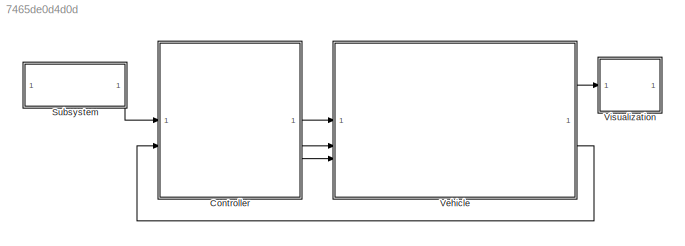
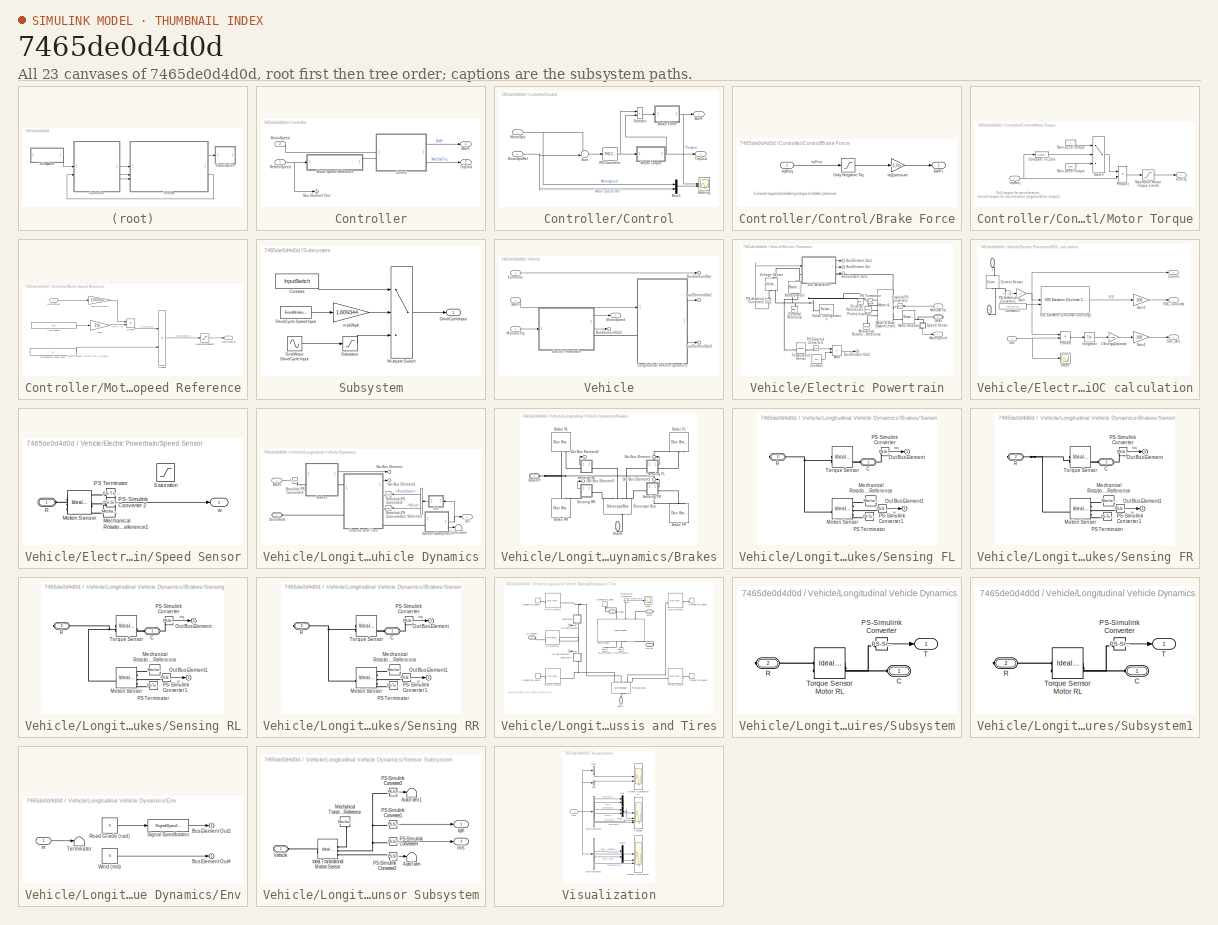
[diagram: thumbnail index - all 23 canvases of the model, root first then tree order]
MODEL slx_7465de0d4d0d
KIND model
CONFIG AbsTol = 1e-3
CONFIG EnableMultiTasking = off
CONFIG FixedStep = auto
CONFIG MaxStep = auto
CONFIG MinStep = auto
CONFIG PreLoadFcn = load fsDCycle.mat\nvehicleData
CONFIG RelTol = 1e-3
CONFIG SampleTimeConstraint = Unconstrained
CONFIG SolverName = VariableStepAuto
CONFIG StartTime = 0.0
CONFIG StopTime = simtime
BLOCK [SubSystem] Controller
BLOCK [Outport] Controller/BrkPr
BLOCK [Outport] Controller/Bus Element Out
  Port = 3
BLOCK [SubSystem] Controller/Control
  PortSchema = {"entries":[{"content":{"sides":[{"content":{"connectorIds":["Out1","Out2"]},"type":"ConnectorPlacement.EquallySpacedRectSide","uuid":"12b9f2c9-2b28-451b-ad36-7fe4150db485"},{"content":{"connectorIds":["In1","In2"],"side":"RIGHT"},"type":"ConnectorPlacement.EquallySpacedRectSide","uuid":"c0fdf9a4-483a-4ddc-b663-6299fcc79327"},{"content":{"connectorIds":[],"side":"TOP"},"type":"ConnectorPlacement.E...<+253ch>
BLOCK [SubSystem] Controller/Control/Brake Force
BLOCK [Saturate] Controller/Control/Brake Force/Only Negative Trq
  LowerLimit = -inf
  UpperLimit = 0
  ZeroCross = off
BLOCK [Outport] Controller/Control/Brake Force/brkPr
BLOCK [Gain] Controller/Control/Brake Force/trq2pressure
  Gain = -3.3e6
BLOCK [Inport] Controller/Control/Brake Force/trqReq
BLOCK [Scope] Controller/Control/Braking
  Floating = off
  NumInputPorts = 2
  ScopeSpecificationString = Simulink.scopes.TimeScopeBlockCfg('CurrentConfiguration', extmgr.ConfigurationSet(extmgr.Configuration('Core','General UI',true),extmgr.Configuration('Core','Source UI',true),extmgr.Configuration('Sources','WiredSimulink',true,'DataLoggingVariableName','ScopeData1'),extmgr.Configuration('Visuals','Time Domain',true,'SerializedDisplays',{struct('MinYLimReal','-1.00000','MaxYLimReal','1.00000','YLab...<+2047ch>
BLOCK [Outport] Controller/Control/BrkPr
BLOCK [SubSystem] Controller/Control/Motor Torque
BLOCK [Reference] Controller/Control/Motor Torque/Compare To Zero  REF=simulink/Logic and Bit
Operations/Compare
To Zero
  SourceBlock = simulink/Logic and Bit\nOperations/Compare\nTo Zero
  SourceType = Compare To Zero
BLOCK [Constant] Controller/Control/Motor Torque/Gain accel torque
BLOCK [Constant] Controller/Control/Motor Torque/Gain decel torque
  NameLocation = top
  Value = 0.95
BLOCK [Product] Controller/Control/Motor Torque/Product
BLOCK [Saturate] Controller/Control/Motor Torque/Saturation Motor Torque Limits
  LowerLimit = -MaxTrqOut
  UpperLimit = MaxTrqOut
BLOCK [Switch] Controller/Control/Motor Torque/Switch
  Criteria = u2 > Threshold
  InputSameDT = off
  SaturateOnIntegerOverflow = off
BLOCK [Outport] Controller/Control/Motor Torque/motTrq
BLOCK [Inport] Controller/Control/Motor Torque/trqReq
BLOCK [Inport] Controller/Control/MotorSpd
  Unit = rpm
BLOCK [Inport] Controller/Control/MotorSpdRef
  Port = 2
  Unit = rpm
BLOCK [Mux] Controller/Control/Mux1
  DisplayOption = bar
  Inputs = 2
BLOCK [Reference] Controller/Control/PID Controller  REF=slpidlib/PID Controller
  SourceBlock = slpidlib/PID Controller
  SourceType = PID 1dof
BLOCK [Sum] Controller/Control/Subtract
  IconShape = rectangular
  Inputs = +-
BLOCK [Sum] Controller/Control/Sum
  Inputs = -+|
BLOCK [Outport] Controller/Control/TrqCmd
  Port = 2
  Unit = N*m
  VectorParamsAs1DForOutWhenUnconnected = off
BLOCK [SubSystem] Controller/Motor Speed Reference
BLOCK [Constant] Controller/Motor Speed Reference/Differential Gear ratio
  Value = G
BLOCK [Product] Controller/Motor Speed Reference/Divide
  Inputs = */
BLOCK [Gain] Controller/Motor Speed Reference/Gain
  Gain = 2*pi
BLOCK [Saturate] Controller/Motor Speed Reference/MaxMotorspeedsat
  LowerLimit = -4500
  UpperLimit = 4500
BLOCK [Outport] Controller/Motor Speed Reference/MotorSpdRef
  NameLocation = right
  Unit = rpm
  VectorParamsAs1DForOutWhenUnconnected = off
BLOCK [Product] Controller/Motor Speed Reference/Product
BLOCK [Inport] Controller/Motor Speed Reference/RefVehSpd
  Unit = km/hr
BLOCK [Constant] Controller/Motor Speed Reference/Tyre radius
  Value = Rw
BLOCK [Gain] Controller/Motor Speed Reference/km//h to m//min
  Gain = 1000/60
BLOCK [Inport] Controller/MotorSpeed
  Port = 2
BLOCK [Inport] Controller/RefVehSpeed
BLOCK [Outport] Controller/TrqCmd
  Port = 2
BLOCK [SubSystem] Subsystem
BLOCK [Constant] Subsystem/Constant
  Value = InputSwitch
BLOCK [FromWorkspace] Subsystem/DriveCycle Speed Input
  VariableName = DrCycles.FTP
BLOCK [Outport] Subsystem/DriveCycleInput
BLOCK [MultiPortSwitch] Subsystem/Multiport Switch
  InputSameDT = off
  Inputs = 2
  SaturateOnIntegerOverflow = off
BLOCK [Saturate] Subsystem/Saturation
  LowerLimit = 0
  UpperLimit = 90
BLOCK [Sin] Subsystem/SineWave DriveCycle Input
  Amplitude = 150
  Bias = 50
  Frequency = 0.1
  SampleTime = 0
BLOCK [Gain] Subsystem/mph2kph
  Gain = 1.609344
BLOCK [SubSystem] Vehicle
BLOCK [Inport] Vehicle/BrkPr
BLOCK [Outport] Vehicle/BusElementOut
BLOCK [Outport] Vehicle/BusElementOut1
BLOCK [Outport] Vehicle/BusElementOut2
BLOCK [Outport] Vehicle/BusElementOut3
BLOCK [Inport] Vehicle/Controller
  Port = 3
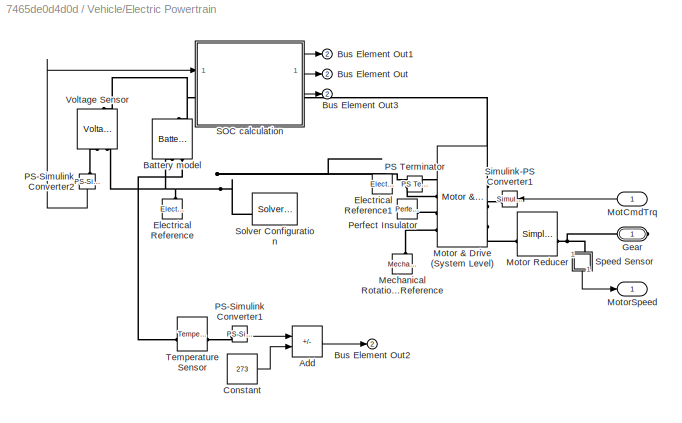
BLOCK [SubSystem] Vehicle/Electric Powertrain
BLOCK [Sum] Vehicle/Electric Powertrain/Add
  IconShape = rectangular
  Inputs = +-
BLOCK [Reference] Vehicle/Electric Powertrain/Battery model  REF=batteryecm_lib/Battery
  NameLocation = right
  SourceBlock = batteryecm_lib/Battery
  SourceType = Battery
BLOCK [Outport] Vehicle/Electric Powertrain/Bus Element Out
  Port = 2
BLOCK [Outport] Vehicle/Electric Powertrain/Bus Element Out1
  Port = 2
BLOCK [Outport] Vehicle/Electric Powertrain/Bus Element Out2
  Port = 2
BLOCK [Outport] Vehicle/Electric Powertrain/Bus Element Out3
  Port = 2
BLOCK [Constant] Vehicle/Electric Powertrain/Constant
  Value = 273
BLOCK [Reference] Vehicle/Electric Powertrain/Electrical Reference  REF=fl_lib/Electrical/Electrical Elements/Electrical Reference
  NameLocation = right
  SourceBlock = fl_lib/Electrical/Electrical Elements/Electrical Reference
  SourceType = Electrical Reference
BLOCK [Reference] Vehicle/Electric Powertrain/Electrical Reference1  REF=fl_lib/Electrical/Electrical Elements/Electrical Reference
  NameLocation = right
  SourceBlock = fl_lib/Electrical/Electrical Elements/Electrical Reference
  SourceType = Electrical Reference
BLOCK [PMIOPort] Vehicle/Electric Powertrain/Gear
  Side = Right
BLOCK [Reference] Vehicle/Electric Powertrain/Mechanical Rotational Reference  REF=fl_lib/Mechanical/Rotational Elements/Mechanical
Rotational Reference
  NameLocation = left
  SourceBlock = fl_lib/Mechanical/Rotational Elements/Mechanical\nRotational Reference
  SourceType = Mechanical\nRotational Reference
BLOCK [Inport] Vehicle/Electric Powertrain/MotCmdTrq
  NameLocation = top
BLOCK [Reference] Vehicle/Electric Powertrain/Motor & Drive (System Level)  REF=ee_lib/Electromechanical/Motor & Drive
(System Level)
  SourceBlock = ee_lib/Electromechanical/Motor & Drive\n(System Level)
  SourceType = Motor & Drive\n(System Level)
BLOCK [Reference] Vehicle/Electric Powertrain/Motor Reducer  REF=sdl_lib/Gears/Simple Gear
  SourceBlock = sdl_lib/Gears/Simple Gear
  SourceType = Simple Gear
BLOCK [Outport] Vehicle/Electric Powertrain/MotorSpeed
BLOCK [Reference] Vehicle/Electric Powertrain/PS Terminator  REF=fl_lib/Physical Signals/Sinks/PS Terminator
  NameLocation = top
  SourceBlock = fl_lib/Physical Signals/Sinks/PS Terminator
  SourceType = PS Terminator
BLOCK [Reference] Vehicle/Electric Powertrain/PS-Simulink Converter1  REF=nesl_utility/PS-Simulink
Converter
  SourceBlock = nesl_utility/PS-Simulink\nConverter
  SourceType = PS-Simulink\nConverter
BLOCK [Reference] Vehicle/Electric Powertrain/PS-Simulink Converter2  REF=nesl_utility/PS-Simulink
Converter
  NameLocation = left
  SourceBlock = nesl_utility/PS-Simulink\nConverter
  SourceType = PS-Simulink\nConverter
BLOCK [Reference] Vehicle/Electric Powertrain/Perfect Insulator  REF=fl_lib/Thermal/Thermal Elements/Perfect Insulator
  SourceBlock = fl_lib/Thermal/Thermal Elements/Perfect Insulator
  SourceType = Perfect Insulator
BLOCK [SubSystem] Vehicle/Electric Powertrain/SOC calculation
  NameLocation = top
BLOCK [PMIOPort] Vehicle/Electric Powertrain/SOC calculation/+
  NameLocation = left
  Side = Left
BLOCK [PMIOPort] Vehicle/Electric Powertrain/SOC calculation/-
  NameLocation = left
  Port = 2
  Side = Right
BLOCK [Gain] Vehicle/Electric Powertrain/SOC calculation/1//EnergyCapacity
  Gain = 1/(energyCapacity*Voc*3600)
BLOCK [Constant] Vehicle/Electric Powertrain/SOC calculation/Constant1
  Value = initialSOC
BLOCK [Outport] Vehicle/Electric Powertrain/SOC calculation/Current
  Port = 2
BLOCK [Reference] Vehicle/Electric Powertrain/SOC calculation/Current Sensor  REF=fl_lib/Electrical/Electrical Sensors/Current Sensor
  NameLocation = right
  SourceBlock = fl_lib/Electrical/Electrical Sensors/Current Sensor
  SourceType = Current Sensor
BLOCK [Gain] Vehicle/Electric Powertrain/SOC calculation/Gain
  Gain = -1
BLOCK [Gain] Vehicle/Electric Powertrain/SOC calculation/Gain1
  Gain = 100
BLOCK [Gain] Vehicle/Electric Powertrain/SOC calculation/Gain2
  Gain = 100
BLOCK [Integrator] Vehicle/Electric Powertrain/SOC calculation/Integrator
  InitialCondition = energyCapacity*Voc*3600*initialSOC
BLOCK [Reference] Vehicle/Electric Powertrain/SOC calculation/PS-Simulink Converter1  REF=nesl_utility/PS-Simulink
Converter
  SourceBlock = nesl_utility/PS-Simulink\nConverter
  SourceType = PS-Simulink\nConverter
BLOCK [Product] Vehicle/Electric Powertrain/SOC calculation/Product
BLOCK [Reference] Vehicle/Electric Powertrain/SOC calculation/SOC Estimator (Coulomb Counting)  REF=BatteryEstimators/SOC Estimator
(Coulomb Counting)
  LibrarySourceBlock = batt_sl_lib/Estimators/SOC Estimator\n(Coulomb Counting)
  SourceBlock = BatteryEstimators/SOC Estimator\n(Coulomb Counting)
  SourceType = SOC Estimator (Coulomb Counting)
BLOCK [Outport] Vehicle/Electric Powertrain/SOC calculation/SOC_Coulomb
BLOCK [Outport] Vehicle/Electric Powertrain/SOC calculation/SOC_calc
  Port = 3
BLOCK [Scope] Vehicle/Electric Powertrain/SOC calculation/Scope
  Floating = off
  NumInputPorts = 1
  ScopeSpecificationString = Simulink.scopes.TimeScopeBlockCfg('CurrentConfiguration', extmgr.ConfigurationSet(extmgr.Configuration('Core','General UI',true),extmgr.Configuration('Core','Source UI',true),extmgr.Configuration('Sources','WiredSimulink',true,'DataLoggingVariableName','ScopeData1'),extmgr.Configuration('Visuals','Time Domain',true,'SerializedDisplays',{struct('MinYLimReal','-85.96518','MaxYLimReal','773.69153','Y...<+1397ch>
BLOCK [Inport] Vehicle/Electric Powertrain/SOC calculation/Voc
BLOCK [Reference] Vehicle/Electric Powertrain/Simulink-PS Converter1  REF=nesl_utility/Simulink-PS
Converter
  NameLocation = top
  SourceBlock = nesl_utility/Simulink-PS\nConverter
  SourceType = Simulink-PS\nConverter
BLOCK [Reference] Vehicle/Electric Powertrain/Solver Configuration  REF=nesl_utility/Solver
Configuration
  SourceBlock = nesl_utility/Solver\nConfiguration
  SourceType = Solver\nConfiguration
BLOCK [SubSystem] Vehicle/Electric Powertrain/Speed Sensor
  NameLocation = left
BLOCK [Reference] Vehicle/Electric Powertrain/Speed Sensor/Mechanical Rotational Reference1  REF=fl_lib/Mechanical/Rotational Elements/Mechanical
Rotational Reference
  SourceBlock = fl_lib/Mechanical/Rotational Elements/Mechanical\nRotational Reference
  SourceType = Mechanical\nRotational Reference
BLOCK [Reference] Vehicle/Electric Powertrain/Speed Sensor/Motion Sensor  REF=fl_lib/Mechanical/Mechanical Sensors/Ideal Rotational
Motion Sensor
  SourceBlock = fl_lib/Mechanical/Mechanical Sensors/Ideal Rotational\nMotion Sensor
  SourceType = Ideal Rotational\nMotion Sensor
BLOCK [Reference] Vehicle/Electric Powertrain/Speed Sensor/PS Terminator  REF=fl_lib/Physical Signals/Sinks/PS Terminator
  NameLocation = top
  SourceBlock = fl_lib/Physical Signals/Sinks/PS Terminator
  SourceType = PS Terminator
BLOCK [Reference] Vehicle/Electric Powertrain/Speed Sensor/PS-Simulink Converter 2  REF=nesl_utility/PS-Simulink
Converter
  AttributesFormatString = %<Unit>
  SourceBlock = nesl_utility/PS-Simulink\nConverter
  SourceType = PS-Simulink\nConverter
BLOCK [PMIOPort] Vehicle/Electric Powertrain/Speed Sensor/R
  Side = Left
BLOCK [Saturate] Vehicle/Electric Powertrain/Speed Sensor/Saturation
  LowerLimit = -MaxMotorSpeed*0.10472
  UpperLimit = MaxMotorSpeed*0.10472
BLOCK [Outport] Vehicle/Electric Powertrain/Speed Sensor/w
BLOCK [Reference] Vehicle/Electric Powertrain/Temperature Sensor  REF=fl_lib/Thermal/Thermal Sensors/Temperature Sensor
  SourceBlock = fl_lib/Thermal/Thermal Sensors/Temperature Sensor
  SourceType = Temperature Sensor
BLOCK [Reference] Vehicle/Electric Powertrain/Voltage Sensor  REF=fl_lib/Electrical/Electrical Sensors/Voltage Sensor
  NameLocation = right
  SourceBlock = fl_lib/Electrical/Electrical Sensors/Voltage Sensor
  SourceType = Voltage Sensor
BLOCK [SubSystem] Vehicle/Longitudinal Vehicle Dynamics
BLOCK [SubSystem] Vehicle/Longitudinal Vehicle Dynamics/Brakes
BLOCK [Reference] Vehicle/Longitudinal Vehicle Dynamics/Brakes/Brake FL  REF=sdl_lib/Brakes & Detents/Rotational/Disc Brake
  NameLocation = left
  SourceBlock = sdl_lib/Brakes & Detents/Rotational/Disc Brake
  SourceType = Disc Brake
BLOCK [Reference] Vehicle/Longitudinal Vehicle Dynamics/Brakes/Brake FR  REF=sdl_lib/Brakes & Detents/Rotational/Disc Brake
  NameLocation = left
  SourceBlock = sdl_lib/Brakes & Detents/Rotational/Disc Brake
  SourceType = Disc Brake
BLOCK [Reference] Vehicle/Longitudinal Vehicle Dynamics/Brakes/Brake RL  REF=sdl_lib/Brakes & Detents/Rotational/Disc Brake
  NameLocation = right
  SourceBlock = sdl_lib/Brakes & Detents/Rotational/Disc Brake
  SourceType = Disc Brake
BLOCK [Reference] Vehicle/Longitudinal Vehicle Dynamics/Brakes/Brake RR  REF=sdl_lib/Brakes & Detents/Rotational/Disc Brake
  NameLocation = right
  SourceBlock = sdl_lib/Brakes & Detents/Rotational/Disc Brake
  SourceType = Disc Brake
BLOCK [PMIOPort] Vehicle/Longitudinal Vehicle Dynamics/Brakes/BrakePr
  Side = Left
BLOCK [Outport] Vehicle/Longitudinal Vehicle Dynamics/Brakes/Out Bus Element
BLOCK [Outport] Vehicle/Longitudinal Vehicle Dynamics/Brakes/Out Bus Element1
BLOCK [Outport] Vehicle/Longitudinal Vehicle Dynamics/Brakes/Out Bus Element2
BLOCK [Outport] Vehicle/Longitudinal Vehicle Dynamics/Brakes/Out Bus Element3
BLOCK [SubSystem] Vehicle/Longitudinal Vehicle Dynamics/Brakes/Sensing FL
BLOCK [PMIOPort] Vehicle/Longitudinal Vehicle Dynamics/Brakes/Sensing FL/C
  Side = Left
BLOCK [Reference] Vehicle/Longitudinal Vehicle Dynamics/Brakes/Sensing FL/Mechanical Rotational Reference  REF=fl_lib/Mechanical/Rotational Elements/Mechanical
Rotational Reference
  NameLocation = top
  SourceBlock = fl_lib/Mechanical/Rotational Elements/Mechanical\nRotational Reference
  SourceType = Mechanical\nRotational Reference
BLOCK [Reference] Vehicle/Longitudinal Vehicle Dynamics/Brakes/Sensing FL/Motion Sensor  REF=fl_lib/Mechanical/Mechanical Sensors/Ideal Rotational
Motion Sensor
  SourceBlock = fl_lib/Mechanical/Mechanical Sensors/Ideal Rotational\nMotion Sensor
  SourceType = Ideal Rotational\nMotion Sensor
BLOCK [Outport] Vehicle/Longitudinal Vehicle Dynamics/Brakes/Sensing FL/Out Bus Element
BLOCK [Outport] Vehicle/Longitudinal Vehicle Dynamics/Brakes/Sensing FL/Out Bus Element1
BLOCK [Reference] Vehicle/Longitudinal Vehicle Dynamics/Brakes/Sensing FL/PS Terminator  REF=fl_lib/Physical Signals/Sinks/PS Terminator
  SourceBlock = fl_lib/Physical Signals/Sinks/PS Terminator
  SourceType = PS Terminator
BLOCK [Reference] Vehicle/Longitudinal Vehicle Dynamics/Brakes/Sensing FL/PS-Simulink Converter  REF=nesl_utility/PS-Simulink
Converter
  SourceBlock = nesl_utility/PS-Simulink\nConverter
  SourceType = PS-Simulink\nConverter
BLOCK [Reference] Vehicle/Longitudinal Vehicle Dynamics/Brakes/Sensing FL/PS-Simulink Converter1  REF=nesl_utility/PS-Simulink
Converter
  SourceBlock = nesl_utility/PS-Simulink\nConverter
  SourceType = PS-Simulink\nConverter
BLOCK [PMIOPort] Vehicle/Longitudinal Vehicle Dynamics/Brakes/Sensing FL/R
  Port = 2
  Side = Right
BLOCK [Reference] Vehicle/Longitudinal Vehicle Dynamics/Brakes/Sensing FL/Torque Sensor  REF=fl_lib/Mechanical/Mechanical Sensors/Ideal Torque Sensor
  SourceBlock = fl_lib/Mechanical/Mechanical Sensors/Ideal Torque Sensor
  SourceType = Ideal Torque Sensor
BLOCK [SubSystem] Vehicle/Longitudinal Vehicle Dynamics/Brakes/Sensing FR
BLOCK [PMIOPort] Vehicle/Longitudinal Vehicle Dynamics/Brakes/Sensing FR/C
  Side = Left
BLOCK [Reference] Vehicle/Longitudinal Vehicle Dynamics/Brakes/Sensing FR/Mechanical Rotational Reference  REF=fl_lib/Mechanical/Rotational Elements/Mechanical
Rotational Reference
  NameLocation = top
  SourceBlock = fl_lib/Mechanical/Rotational Elements/Mechanical\nRotational Reference
  SourceType = Mechanical\nRotational Reference
BLOCK [Reference] Vehicle/Longitudinal Vehicle Dynamics/Brakes/Sensing FR/Motion Sensor  REF=fl_lib/Mechanical/Mechanical Sensors/Ideal Rotational
Motion Sensor
  SourceBlock = fl_lib/Mechanical/Mechanical Sensors/Ideal Rotational\nMotion Sensor
  SourceType = Ideal Rotational\nMotion Sensor
BLOCK [Outport] Vehicle/Longitudinal Vehicle Dynamics/Brakes/Sensing FR/Out Bus Element
BLOCK [Outport] Vehicle/Longitudinal Vehicle Dynamics/Brakes/Sensing FR/Out Bus Element1
BLOCK [Reference] Vehicle/Longitudinal Vehicle Dynamics/Brakes/Sensing FR/PS Terminator  REF=fl_lib/Physical Signals/Sinks/PS Terminator
  SourceBlock = fl_lib/Physical Signals/Sinks/PS Terminator
  SourceType = PS Terminator
BLOCK [Reference] Vehicle/Longitudinal Vehicle Dynamics/Brakes/Sensing FR/PS-Simulink Converter  REF=nesl_utility/PS-Simulink
Converter
  SourceBlock = nesl_utility/PS-Simulink\nConverter
  SourceType = PS-Simulink\nConverter
BLOCK [Reference] Vehicle/Longitudinal Vehicle Dynamics/Brakes/Sensing FR/PS-Simulink Converter1  REF=nesl_utility/PS-Simulink
Converter
  SourceBlock = nesl_utility/PS-Simulink\nConverter
  SourceType = PS-Simulink\nConverter
BLOCK [PMIOPort] Vehicle/Longitudinal Vehicle Dynamics/Brakes/Sensing FR/R
  Port = 2
  Side = Right
BLOCK [Reference] Vehicle/Longitudinal Vehicle Dynamics/Brakes/Sensing FR/Torque Sensor  REF=fl_lib/Mechanical/Mechanical Sensors/Ideal Torque Sensor
  SourceBlock = fl_lib/Mechanical/Mechanical Sensors/Ideal Torque Sensor
  SourceType = Ideal Torque Sensor
BLOCK [SubSystem] Vehicle/Longitudinal Vehicle Dynamics/Brakes/Sensing RL
BLOCK [PMIOPort] Vehicle/Longitudinal Vehicle Dynamics/Brakes/Sensing RL/C
  Side = Left
BLOCK [Reference] Vehicle/Longitudinal Vehicle Dynamics/Brakes/Sensing RL/Mechanical Rotational Reference  REF=fl_lib/Mechanical/Rotational Elements/Mechanical
Rotational Reference
  NameLocation = top
  SourceBlock = fl_lib/Mechanical/Rotational Elements/Mechanical\nRotational Reference
  SourceType = Mechanical\nRotational Reference
BLOCK [Reference] Vehicle/Longitudinal Vehicle Dynamics/Brakes/Sensing RL/Motion Sensor  REF=fl_lib/Mechanical/Mechanical Sensors/Ideal Rotational
Motion Sensor
  SourceBlock = fl_lib/Mechanical/Mechanical Sensors/Ideal Rotational\nMotion Sensor
  SourceType = Ideal Rotational\nMotion Sensor
BLOCK [Outport] Vehicle/Longitudinal Vehicle Dynamics/Brakes/Sensing RL/Out Bus Element
BLOCK [Outport] Vehicle/Longitudinal Vehicle Dynamics/Brakes/Sensing RL/Out Bus Element1
BLOCK [Reference] Vehicle/Longitudinal Vehicle Dynamics/Brakes/Sensing RL/PS Terminator  REF=fl_lib/Physical Signals/Sinks/PS Terminator
  SourceBlock = fl_lib/Physical Signals/Sinks/PS Terminator
  SourceType = PS Terminator
BLOCK [Reference] Vehicle/Longitudinal Vehicle Dynamics/Brakes/Sensing RL/PS-Simulink Converter  REF=nesl_utility/PS-Simulink
Converter
  SourceBlock = nesl_utility/PS-Simulink\nConverter
  SourceType = PS-Simulink\nConverter
BLOCK [Reference] Vehicle/Longitudinal Vehicle Dynamics/Brakes/Sensing RL/PS-Simulink Converter1  REF=nesl_utility/PS-Simulink
Converter
  SourceBlock = nesl_utility/PS-Simulink\nConverter
  SourceType = PS-Simulink\nConverter
BLOCK [PMIOPort] Vehicle/Longitudinal Vehicle Dynamics/Brakes/Sensing RL/R
  Port = 2
  Side = Right
BLOCK [Reference] Vehicle/Longitudinal Vehicle Dynamics/Brakes/Sensing RL/Torque Sensor  REF=fl_lib/Mechanical/Mechanical Sensors/Ideal Torque Sensor
  SourceBlock = fl_lib/Mechanical/Mechanical Sensors/Ideal Torque Sensor
  SourceType = Ideal Torque Sensor
BLOCK [SubSystem] Vehicle/Longitudinal Vehicle Dynamics/Brakes/Sensing RR
BLOCK [PMIOPort] Vehicle/Longitudinal Vehicle Dynamics/Brakes/Sensing RR/C
  Side = Left
BLOCK [Reference] Vehicle/Longitudinal Vehicle Dynamics/Brakes/Sensing RR/Mechanical Rotational Reference  REF=fl_lib/Mechanical/Rotational Elements/Mechanical
Rotational Reference
  NameLocation = top
  SourceBlock = fl_lib/Mechanical/Rotational Elements/Mechanical\nRotational Reference
  SourceType = Mechanical\nRotational Reference
BLOCK [Reference] Vehicle/Longitudinal Vehicle Dynamics/Brakes/Sensing RR/Motion Sensor  REF=fl_lib/Mechanical/Mechanical Sensors/Ideal Rotational
Motion Sensor
  SourceBlock = fl_lib/Mechanical/Mechanical Sensors/Ideal Rotational\nMotion Sensor
  SourceType = Ideal Rotational\nMotion Sensor
BLOCK [Outport] Vehicle/Longitudinal Vehicle Dynamics/Brakes/Sensing RR/Out Bus Element
BLOCK [Outport] Vehicle/Longitudinal Vehicle Dynamics/Brakes/Sensing RR/Out Bus Element1
BLOCK [Reference] Vehicle/Longitudinal Vehicle Dynamics/Brakes/Sensing RR/PS Terminator  REF=fl_lib/Physical Signals/Sinks/PS Terminator
  SourceBlock = fl_lib/Physical Signals/Sinks/PS Terminator
  SourceType = PS Terminator
BLOCK [Reference] Vehicle/Longitudinal Vehicle Dynamics/Brakes/Sensing RR/PS-Simulink Converter  REF=nesl_utility/PS-Simulink
Converter
  SourceBlock = nesl_utility/PS-Simulink\nConverter
  SourceType = PS-Simulink\nConverter
BLOCK [Reference] Vehicle/Longitudinal Vehicle Dynamics/Brakes/Sensing RR/PS-Simulink Converter1  REF=nesl_utility/PS-Simulink
Converter
  SourceBlock = nesl_utility/PS-Simulink\nConverter
  SourceType = PS-Simulink\nConverter
BLOCK [PMIOPort] Vehicle/Longitudinal Vehicle Dynamics/Brakes/Sensing RR/R
  Port = 2
  Side = Right
BLOCK [Reference] Vehicle/Longitudinal Vehicle Dynamics/Brakes/Sensing RR/Torque Sensor  REF=fl_lib/Mechanical/Mechanical Sensors/Ideal Torque Sensor
  SourceBlock = fl_lib/Mechanical/Mechanical Sensors/Ideal Torque Sensor
  SourceType = Ideal Torque Sensor
BLOCK [PMIOPort] Vehicle/Longitudinal Vehicle Dynamics/Brakes/Shafts
  NameLocation = left
  Port = 2
  Side = Right
BLOCK [SimscapeBus] Vehicle/Longitudinal Vehicle Dynamics/Brakes/Simscape Bus
  HierarchyStrings = RR;RL;FL;FR
  NameLocation = left
BLOCK [Inport] Vehicle/Longitudinal Vehicle Dynamics/BrkPr
BLOCK [BusSelector] Vehicle/Longitudinal Vehicle Dynamics/Bus Selector2
  OutputSignals = RoadGrade,Wind
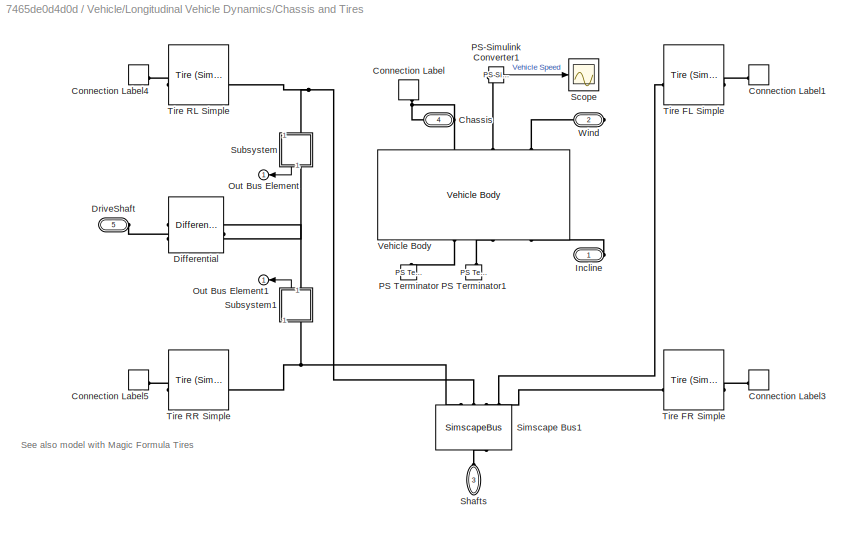
BLOCK [SubSystem] Vehicle/Longitudinal Vehicle Dynamics/Chassis and Tires
BLOCK [PMIOPort] Vehicle/Longitudinal Vehicle Dynamics/Chassis and Tires/Chassis
  Port = 4
  Side = Right
BLOCK [ConnectionLabel] Vehicle/Longitudinal Vehicle Dynamics/Chassis and Tires/Connection Label
  Label = VehicleHub
  NameLocation = right
BLOCK [ConnectionLabel] Vehicle/Longitudinal Vehicle Dynamics/Chassis and Tires/Connection Label1
  Label = VehicleHub
BLOCK [ConnectionLabel] Vehicle/Longitudinal Vehicle Dynamics/Chassis and Tires/Connection Label3
  Label = VehicleHub
BLOCK [ConnectionLabel] Vehicle/Longitudinal Vehicle Dynamics/Chassis and Tires/Connection Label4
  Label = VehicleHub
  NameLocation = top
BLOCK [ConnectionLabel] Vehicle/Longitudinal Vehicle Dynamics/Chassis and Tires/Connection Label5
  Label = VehicleHub
  NameLocation = top
BLOCK [Reference] Vehicle/Longitudinal Vehicle Dynamics/Chassis and Tires/Differential  REF=sdl_lib/Gears/Differential
  SourceBlock = sdl_lib/Gears/Differential
  SourceType = Differential
BLOCK [PMIOPort] Vehicle/Longitudinal Vehicle Dynamics/Chassis and Tires/DriveShaft
  Port = 5
  Side = Left
BLOCK [PMIOPort] Vehicle/Longitudinal Vehicle Dynamics/Chassis and Tires/Incline
  Side = Right
BLOCK [Outport] Vehicle/Longitudinal Vehicle Dynamics/Chassis and Tires/Out Bus Element
  NameLocation = top
BLOCK [Outport] Vehicle/Longitudinal Vehicle Dynamics/Chassis and Tires/Out Bus Element1
  NameLocation = top
BLOCK [Reference] Vehicle/Longitudinal Vehicle Dynamics/Chassis and Tires/PS Terminator  REF=fl_lib/Physical Signals/Sinks/PS Terminator
  NameLocation = left
  SourceBlock = fl_lib/Physical Signals/Sinks/PS Terminator
  SourceType = PS Terminator
BLOCK [Reference] Vehicle/Longitudinal Vehicle Dynamics/Chassis and Tires/PS Terminator1  REF=fl_lib/Physical Signals/Sinks/PS Terminator
  NameLocation = left
  SourceBlock = fl_lib/Physical Signals/Sinks/PS Terminator
  SourceType = PS Terminator
BLOCK [Reference] Vehicle/Longitudinal Vehicle Dynamics/Chassis and Tires/PS-Simulink Converter1  REF=nesl_utility/PS-Simulink
Converter
  SourceBlock = nesl_utility/PS-Simulink\nConverter
  SourceType = PS-Simulink\nConverter
BLOCK [Scope] Vehicle/Longitudinal Vehicle Dynamics/Chassis and Tires/Scope
  Floating = off
  NumInputPorts = 1
  ScopeSpecificationString = Simulink.scopes.TimeScopeBlockCfg('CurrentConfiguration', extmgr.ConfigurationSet(extmgr.Configuration('Core','General UI',true),extmgr.Configuration('Core','Source UI',true),extmgr.Configuration('Sources','WiredSimulink',true,'DataLoggingLimitDataPoints',true,'DataLoggingSaveFormat','Array','DataLoggingDecimation','1','DataLoggingDecimateData',true,'DataLoggingVariableName','ScopeData1'),extmgr.C...<+1679ch>
BLOCK [PMIOPort] Vehicle/Longitudinal Vehicle Dynamics/Chassis and Tires/Shafts
  NameLocation = right
  Port = 3
  Side = Left
BLOCK [SimscapeBus] Vehicle/Longitudinal Vehicle Dynamics/Chassis and Tires/Simscape Bus1
  HierarchyStrings = RR;RL;FL;FR
  NameLocation = left
BLOCK [SubSystem] Vehicle/Longitudinal Vehicle Dynamics/Chassis and Tires/Subsystem
  NameLocation = top
BLOCK [PMIOPort] Vehicle/Longitudinal Vehicle Dynamics/Chassis and Tires/Subsystem/C
  Side = Left
BLOCK [Reference] Vehicle/Longitudinal Vehicle Dynamics/Chassis and Tires/Subsystem/PS-Simulink Converter  REF=nesl_utility/PS-Simulink
Converter
  SourceBlock = nesl_utility/PS-Simulink\nConverter
  SourceType = PS-Simulink\nConverter
BLOCK [PMIOPort] Vehicle/Longitudinal Vehicle Dynamics/Chassis and Tires/Subsystem/R
  Port = 2
  Side = Right
BLOCK [Outport] Vehicle/Longitudinal Vehicle Dynamics/Chassis and Tires/Subsystem/T
BLOCK [Reference] Vehicle/Longitudinal Vehicle Dynamics/Chassis and Tires/Subsystem/Torque Sensor Motor RL  REF=fl_lib/Mechanical/Mechanical Sensors/Ideal Torque Sensor
  SourceBlock = fl_lib/Mechanical/Mechanical Sensors/Ideal Torque Sensor
  SourceType = Ideal Torque Sensor
BLOCK [SubSystem] Vehicle/Longitudinal Vehicle Dynamics/Chassis and Tires/Subsystem1
BLOCK [PMIOPort] Vehicle/Longitudinal Vehicle Dynamics/Chassis and Tires/Subsystem1/C
  Side = Left
BLOCK [Reference] Vehicle/Longitudinal Vehicle Dynamics/Chassis and Tires/Subsystem1/PS-Simulink Converter  REF=nesl_utility/PS-Simulink
Converter
  SourceBlock = nesl_utility/PS-Simulink\nConverter
  SourceType = PS-Simulink\nConverter
BLOCK [PMIOPort] Vehicle/Longitudinal Vehicle Dynamics/Chassis and Tires/Subsystem1/R
  Port = 2
  Side = Right
BLOCK [Outport] Vehicle/Longitudinal Vehicle Dynamics/Chassis and Tires/Subsystem1/T
BLOCK [Reference] Vehicle/Longitudinal Vehicle Dynamics/Chassis and Tires/Subsystem1/Torque Sensor Motor RL  REF=fl_lib/Mechanical/Mechanical Sensors/Ideal Torque Sensor
  SourceBlock = fl_lib/Mechanical/Mechanical Sensors/Ideal Torque Sensor
  SourceType = Ideal Torque Sensor
BLOCK [Reference] Vehicle/Longitudinal Vehicle Dynamics/Chassis and Tires/Tire FL Simple  REF=sdl_lib/Tires & Vehicles/Tire (Simple)
  NameLocation = top
  SourceBlock = sdl_lib/Tires & Vehicles/Tire (Simple)
  SourceType = Tire (Simple)
BLOCK [Reference] Vehicle/Longitudinal Vehicle Dynamics/Chassis and Tires/Tire FR Simple  REF=sdl_lib/Tires & Vehicles/Tire (Simple)
  NameLocation = top
  SourceBlock = sdl_lib/Tires & Vehicles/Tire (Simple)
  SourceType = Tire (Simple)
BLOCK [Reference] Vehicle/Longitudinal Vehicle Dynamics/Chassis and Tires/Tire RL Simple  REF=sdl_lib/Tires & Vehicles/Tire (Simple)
  NameLocation = top
  SourceBlock = sdl_lib/Tires & Vehicles/Tire (Simple)
  SourceType = Tire (Simple)
BLOCK [Reference] Vehicle/Longitudinal Vehicle Dynamics/Chassis and Tires/Tire RR Simple  REF=sdl_lib/Tires & Vehicles/Tire (Simple)
  NameLocation = top
  SourceBlock = sdl_lib/Tires & Vehicles/Tire (Simple)
  SourceType = Tire (Simple)
BLOCK [Reference] Vehicle/Longitudinal Vehicle Dynamics/Chassis and Tires/Vehicle Body  REF=sdl_lib/Tires & Vehicles/Vehicle Body
  NameLocation = right
  SourceBlock = sdl_lib/Tires & Vehicles/Vehicle Body
  SourceType = Vehicle Body
BLOCK [PMIOPort] Vehicle/Longitudinal Vehicle Dynamics/Chassis and Tires/Wind
  Port = 2
  Side = Right
BLOCK [PMIOPort] Vehicle/Longitudinal Vehicle Dynamics/DriveShaft
  Side = Left
BLOCK [SubSystem] Vehicle/Longitudinal Vehicle Dynamics/Env
  NameLocation = top
BLOCK [Outport] Vehicle/Longitudinal Vehicle Dynamics/Env/Bus Element Out2
  AttributesFormatString = %<Unit>
BLOCK [Outport] Vehicle/Longitudinal Vehicle Dynamics/Env/Bus Element Out4
  AttributesFormatString = %<Unit>
BLOCK [Constant] Vehicle/Longitudinal Vehicle Dynamics/Env/Road Grade (rad)
  Value = 0
BLOCK [SignalSpecification] Vehicle/Longitudinal Vehicle Dynamics/Env/Signal Specification
  Unit = rad
BLOCK [Terminator] Vehicle/Longitudinal Vehicle Dynamics/Env/Terminator
BLOCK [Constant] Vehicle/Longitudinal Vehicle Dynamics/Env/Wind (m//s)
  Value = 0
BLOCK [Inport] Vehicle/Longitudinal Vehicle Dynamics/Env/m
BLOCK [Outport] Vehicle/Longitudinal Vehicle Dynamics/Out Bus Element
  Port = 2
BLOCK [Outport] Vehicle/Longitudinal Vehicle Dynamics/Out Bus Element1
  Port = 2
BLOCK [SubSystem] Vehicle/Longitudinal Vehicle Dynamics/Sensor Subsystem
BLOCK [Terminator] Vehicle/Longitudinal Vehicle Dynamics/Sensor Subsystem/AutoTerm
BLOCK [Terminator] Vehicle/Longitudinal Vehicle Dynamics/Sensor Subsystem/AutoTerm1
BLOCK [Reference] Vehicle/Longitudinal Vehicle Dynamics/Sensor Subsystem/Ideal Translational Motion Sensor  REF=fl_lib/Mechanical/Mechanical Sensors/Ideal Translational
Motion Sensor
  SourceBlock = fl_lib/Mechanical/Mechanical Sensors/Ideal Translational\nMotion Sensor
  SourceType = Ideal Translational\nMotion Sensor
BLOCK [Reference] Vehicle/Longitudinal Vehicle Dynamics/Sensor Subsystem/Mechanical Translational Reference  REF=fl_lib/Mechanical/Translational
Elements/Mechanical
Translational
Reference
  NameLocation = left
  SourceBlock = fl_lib/Mechanical/Translational\nElements/Mechanical\nTranslational\nReference
  SourceType = Mechanical\nTranslational\nReference
BLOCK [Reference] Vehicle/Longitudinal Vehicle Dynamics/Sensor Subsystem/PS-Simulink Converter1  REF=nesl_utility/PS-Simulink
Converter
  SourceBlock = nesl_utility/PS-Simulink\nConverter
  SourceType = PS-Simulink\nConverter
BLOCK [Reference] Vehicle/Longitudinal Vehicle Dynamics/Sensor Subsystem/PS-Simulink Converter2  REF=nesl_utility/PS-Simulink
Converter
  SourceBlock = nesl_utility/PS-Simulink\nConverter
  SourceType = PS-Simulink\nConverter
BLOCK [Reference] Vehicle/Longitudinal Vehicle Dynamics/Sensor Subsystem/PS-Simulink Converter3  REF=nesl_utility/PS-Simulink
Converter
  SourceBlock = nesl_utility/PS-Simulink\nConverter
  SourceType = PS-Simulink\nConverter
BLOCK [Reference] Vehicle/Longitudinal Vehicle Dynamics/Sensor Subsystem/PS-Simulink Converter4  REF=nesl_utility/PS-Simulink
Converter
  SourceBlock = nesl_utility/PS-Simulink\nConverter
  SourceType = PS-Simulink\nConverter
BLOCK [PMIOPort] Vehicle/Longitudinal Vehicle Dynamics/Sensor Subsystem/Vehicle
  Side = Left
BLOCK [Outport] Vehicle/Longitudinal Vehicle Dynamics/Sensor Subsystem/kph
  VectorParamsAs1DForOutWhenUnconnected = off
BLOCK [Outport] Vehicle/Longitudinal Vehicle Dynamics/Sensor Subsystem/m//s
  Port = 2
  VectorParamsAs1DForOutWhenUnconnected = off
BLOCK [Reference] Vehicle/Longitudinal Vehicle Dynamics/Simulink-PS Converter2  REF=nesl_utility/Simulink-PS
Converter
  AttributesFormatString = %<Unit>
  SourceBlock = nesl_utility/Simulink-PS\nConverter
  SourceType = Simulink-PS\nConverter
BLOCK [Reference] Vehicle/Longitudinal Vehicle Dynamics/Simulink-PS Converter3  REF=nesl_utility/Simulink-PS
Converter
  AttributesFormatString = %<Unit>
  SourceBlock = nesl_utility/Simulink-PS\nConverter
  SourceType = Simulink-PS\nConverter
BLOCK [Reference] Vehicle/Longitudinal Vehicle Dynamics/Simulink-PS Converter4  REF=nesl_utility/Simulink-PS
Converter
  AttributesFormatString = %<Unit>
  SourceBlock = nesl_utility/Simulink-PS\nConverter
  SourceType = Simulink-PS\nConverter
BLOCK [Terminator] Vehicle/Longitudinal Vehicle Dynamics/Terminator
BLOCK [Outport] Vehicle/Longitudinal Vehicle Dynamics/Vel
BLOCK [Inport] Vehicle/MotCmdTrq
  Port = 2
BLOCK [Outport] Vehicle/MotorSpeed
  Port = 2
  VectorParamsAs1DForOutWhenUnconnected = off
BLOCK [SubSystem] Visualization
BLOCK [Scope] Visualization/Battery Information
  Floating = off
  NumInputPorts = 3
  ScopeSpecificationString = Simulink.scopes.TimeScopeBlockCfg('CurrentConfiguration', extmgr.ConfigurationSet(extmgr.Configuration('Core','General UI',true),extmgr.Configuration('Core','Source UI',true),extmgr.Configuration('Sources','WiredSimulink',true,'DataLoggingVariableName','ScopeData1'),extmgr.Configuration('Visuals','Time Domain',true,'SerializedDisplays',{struct('MinYLimReal','-302.40309','MaxYLimReal','111.46422','...<+3026ch>
BLOCK [BusSelector] Visualization/Bus Selector1
  OutputSignals = Vehicle.Brakes.RL.brkTrqRL,Vehicle.Chassis.tRL,Vehicle.Brakes.RR.brqTrqRR,Vehicle.Chassis.tRR,Vehicle.Brakes.FL.brkTrqFL,Vehicle.Brakes.FR.brkTrqFR
BLOCK [BusSelector] Visualization/Bus Selector2
  OutputSignals = Battery.Current,Battery.SOC_coulomb,Battery.SOC_calc,Battery.Temperature
BLOCK [BusSelector] Visualization/Cha
  OutputAsBus = on
  OutputSignals = VehSpeed,RefVehSpeed
BLOCK [Inport] Visualization/Info
BLOCK [Mux] Visualization/Mux
  DisplayOption = bar
  Inputs = 2
BLOCK [Mux] Visualization/Mux1
  DisplayOption = bar
  Inputs = 2
BLOCK [Mux] Visualization/Mux2
  DisplayOption = bar
  Inputs = 2
BLOCK [Scope] Visualization/Torques
  Floating = off
  NumInputPorts = 4
  ScopeSpecificationString = Simulink.scopes.TimeScopeBlockCfg('CurrentConfiguration', extmgr.ConfigurationSet(extmgr.Configuration('Core','General UI',true),extmgr.Configuration('Core','Source UI',true),extmgr.Configuration('Sources','WiredSimulink',true,'DataLoggingVariableName','ScopeData2'),extmgr.Configuration('Visuals','Time Domain',true,'SerializedDisplays',{struct('MinYLimReal','-3384.37376','MaxYLimReal','3384.37118'...<+3543ch>
BLOCK [Scope] Visualization/Velocity Comparison
  Floating = off
  NumInputPorts = 2
  ScopeSpecificationString = Simulink.scopes.TimeScopeBlockCfg('CurrentConfiguration', extmgr.ConfigurationSet(extmgr.Configuration('Core','General UI',true),extmgr.Configuration('Core','Source UI',true),extmgr.Configuration('Sources','WiredSimulink',true,'DataLoggingVariableName','ScopeData1'),extmgr.Configuration('Visuals','Time Domain',true,'SerializedDisplays',{struct('MinYLimReal','-11.40623','MaxYLimReal','102.65603','Y...<+2273ch>
BLOCK [BusSelector] Visualization/Whl
  OutputAsBus = on
  OutputSignals = Vehicle.Brakes.FL.wFL,Vehicle.Brakes.RR.wRR,Vehicle.Brakes.RL.wRL,Vehicle.Brakes.FR.wFR
ANNOTATION Controller/Control/Brake Force: Convert requested braking torque to brake pressure
ANNOTATION Controller/Control/Motor Torque: Full torque for acceleration, limited torque for deceleration (regenerative torque)
ANNOTATION Controller/Motor Speed Reference: Motor Reducer Output Shaft to Wheels
ANNOTATION Vehicle/Longitudinal Vehicle Dynamics/Chassis and Tires: See also model with Magic Formula Tires
LINE Controller/Control/Brake Force/Only Negative Trq:1 -> Controller/Control/Brake Force/trq2pressure:1
LINE Controller/Control/Brake Force/trq2pressure:1 -> Controller/Control/Brake Force/brkPr:1
LINE Controller/Control/Brake Force/trqReq:1 -> Controller/Control/Brake Force/Only Negative Trq:1
NET Controller/Control/Brake Force:1 -> Controller/Control/Braking:1, Controller/Control/BrkPr:1
LINE Controller/Control/Motor Torque/Compare To Zero:1 -> Controller/Control/Motor Torque/Switch:2
LINE Controller/Control/Motor Torque/Gain accel torque:1 -> Controller/Control/Motor Torque/Switch:1
LINE Controller/Control/Motor Torque/Gain decel torque:1 -> Controller/Control/Motor Torque/Switch:3
LINE Controller/Control/Motor Torque/Product:1 -> Controller/Control/Motor Torque/Saturation Motor Torque Limits:1
LINE Controller/Control/Motor Torque/Saturation Motor Torque Limits:1 -> Controller/Control/Motor Torque/motTrq:1
LINE Controller/Control/Motor Torque/Switch:1 -> Controller/Control/Motor Torque/Product:1
NET Controller/Control/Motor Torque/trqReq:1 -> Controller/Control/Motor Torque/Compare To Zero:1, Controller/Control/Motor Torque/Product:2
NET Controller/Control/Motor Torque:1 -> Controller/Control/Subtract:2, Controller/Control/TrqCmd:1
NET Controller/Control/MotorSpd:1 -> Controller/Control/Mux1:1, Controller/Control/Sum:1
NET Controller/Control/MotorSpdRef:1 -> Controller/Control/Mux1:2, Controller/Control/Sum:2
LINE Controller/Control/Mux1:1 -> Controller/Control/Braking:2
NET Controller/Control/PID Controller:1 -> Controller/Control/Motor Torque:1, Controller/Control/Subtract:1
LINE Controller/Control/Subtract:1 -> Controller/Control/Brake Force:1
LINE Controller/Control/Sum:1 -> Controller/Control/PID Controller:1
LINE Controller/Control:1 -> Controller/BrkPr:1
LINE Controller/Control:2 -> Controller/TrqCmd:1
LINE Controller/Motor Speed Reference/Differential Gear ratio:1 -> Controller/Motor Speed Reference/Product:2
LINE Controller/Motor Speed Reference/Divide:1 -> Controller/Motor Speed Reference/Product:1
LINE Controller/Motor Speed Reference/Gain:1 -> Controller/Motor Speed Reference/Divide:2
LINE Controller/Motor Speed Reference/MaxMotorspeedsat:1 -> Controller/Motor Speed Reference/MotorSpdRef:1
LINE Controller/Motor Speed Reference/Product:1 -> Controller/Motor Speed Reference/MaxMotorspeedsat:1
LINE Controller/Motor Speed Reference/RefVehSpd:1 -> Controller/Motor Speed Reference/km//h to m//min:1
LINE Controller/Motor Speed Reference/Tyre radius:1 -> Controller/Motor Speed Reference/Gain:1
LINE Controller/Motor Speed Reference/km//h to m//min:1 -> Controller/Motor Speed Reference/Divide:1
LINE Controller/Motor Speed Reference:1 -> Controller/Control:2
LINE Controller/MotorSpeed:1 -> Controller/Control:1
NET Controller/RefVehSpeed:1 -> Controller/Bus Element Out:1, Controller/Motor Speed Reference:1
LINE Controller:1 -> Vehicle:1
LINE Controller:2 -> Vehicle:2
LINE Controller:3 -> Vehicle:3
LINE Subsystem/Constant:1 -> Subsystem/Multiport Switch:1
LINE Subsystem/DriveCycle Speed Input:1 -> Subsystem/mph2kph:1
LINE Subsystem/Multiport Switch:1 -> Subsystem/DriveCycleInput:1
LINE Subsystem/Saturation:1 -> Subsystem/Multiport Switch:3
LINE Subsystem/SineWave DriveCycle Input:1 -> Subsystem/Saturation:1
LINE Subsystem/mph2kph:1 -> Subsystem/Multiport Switch:2
LINE Subsystem:1 -> Controller:1
LINE Vehicle/BrkPr:1 -> Vehicle/Longitudinal Vehicle Dynamics:1
LINE Vehicle/Controller:1 -> Vehicle/BusElementOut:1
LINE Vehicle/Electric Powertrain/Add:1 -> Vehicle/Electric Powertrain/Bus Element Out2:1
LINE Vehicle/Electric Powertrain/Constant:1 -> Vehicle/Electric Powertrain/Add:2
LINE Vehicle/Electric Powertrain/MotCmdTrq:1 -> Vehicle/Electric Powertrain/Simulink-PS Converter1:1
LINE Vehicle/Electric Powertrain/PS-Simulink Converter1:1 -> Vehicle/Electric Powertrain/Add:1
LINE Vehicle/Electric Powertrain/PS-Simulink Converter2:1 -> Vehicle/Electric Powertrain/SOC calculation:1
LINE Vehicle/Electric Powertrain/SOC calculation/1//EnergyCapacity:1 -> Vehicle/Electric Powertrain/SOC calculation/Gain2:1
LINE Vehicle/Electric Powertrain/SOC calculation/Constant1:1 -> Vehicle/Electric Powertrain/SOC calculation/SOC Estimator (Coulomb Counting):2
LINE Vehicle/Electric Powertrain/SOC calculation/Gain1:1 -> Vehicle/Electric Powertrain/SOC calculation/SOC_Coulomb:1
LINE Vehicle/Electric Powertrain/SOC calculation/Gain2:1 -> Vehicle/Electric Powertrain/SOC calculation/SOC_calc:1
NET Vehicle/Electric Powertrain/SOC calculation/Gain:1 -> Vehicle/Electric Powertrain/SOC calculation/Current:1, Vehicle/Electric Powertrain/SOC calculation/Product:1, Vehicle/Electric Powertrain/SOC calculation/SOC Estimator (Coulomb Counting):1
LINE Vehicle/Electric Powertrain/SOC calculation/Integrator:1 -> Vehicle/Electric Powertrain/SOC calculation/1//EnergyCapacity:1
LINE Vehicle/Electric Powertrain/SOC calculation/PS-Simulink Converter1:1 -> Vehicle/Electric Powertrain/SOC calculation/Gain:1
LINE Vehicle/Electric Powertrain/SOC calculation/Product:1 -> Vehicle/Electric Powertrain/SOC calculation/Integrator:1
LINE Vehicle/Electric Powertrain/SOC calculation/SOC Estimator (Coulomb Counting):1 -> Vehicle/Electric Powertrain/SOC calculation/Gain1:1
NET Vehicle/Electric Powertrain/SOC calculation/Voc:1 -> Vehicle/Electric Powertrain/SOC calculation/Product:2, Vehicle/Electric Powertrain/SOC calculation/Scope:1
LINE Vehicle/Electric Powertrain/SOC calculation:1 -> Vehicle/Electric Powertrain/Bus Element Out1:1
LINE Vehicle/Electric Powertrain/SOC calculation:2 -> Vehicle/Electric Powertrain/Bus Element Out:1
LINE Vehicle/Electric Powertrain/SOC calculation:3 -> Vehicle/Electric Powertrain/Bus Element Out3:1
LINE Vehicle/Electric Powertrain/Speed Sensor/PS-Simulink Converter 2:1 -> Vehicle/Electric Powertrain/Speed Sensor/w:1
LINE Vehicle/Electric Powertrain/Speed Sensor:1 -> Vehicle/Electric Powertrain/MotorSpeed:1
LINE Vehicle/Electric Powertrain:1 -> Vehicle/MotorSpeed:1
LINE Vehicle/Electric Powertrain:2 -> Vehicle/BusElementOut2:1
LINE Vehicle/Longitudinal Vehicle Dynamics/Brakes/Sensing FL/PS-Simulink Converter1:1 -> Vehicle/Longitudinal Vehicle Dynamics/Brakes/Sensing FL/Out Bus Element1:1
LINE Vehicle/Longitudinal Vehicle Dynamics/Brakes/Sensing FL/PS-Simulink Converter:1 -> Vehicle/Longitudinal Vehicle Dynamics/Brakes/Sensing FL/Out Bus Element:1
LINE Vehicle/Longitudinal Vehicle Dynamics/Brakes/Sensing FL:1 -> Vehicle/Longitudinal Vehicle Dynamics/Brakes/Out Bus Element:1
LINE Vehicle/Longitudinal Vehicle Dynamics/Brakes/Sensing FR/PS-Simulink Converter1:1 -> Vehicle/Longitudinal Vehicle Dynamics/Brakes/Sensing FR/Out Bus Element1:1
LINE Vehicle/Longitudinal Vehicle Dynamics/Brakes/Sensing FR/PS-Simulink Converter:1 -> Vehicle/Longitudinal Vehicle Dynamics/Brakes/Sensing FR/Out Bus Element:1
LINE Vehicle/Longitudinal Vehicle Dynamics/Brakes/Sensing FR:1 -> Vehicle/Longitudinal Vehicle Dynamics/Brakes/Out Bus Element1:1
LINE Vehicle/Longitudinal Vehicle Dynamics/Brakes/Sensing RL/PS-Simulink Converter1:1 -> Vehicle/Longitudinal Vehicle Dynamics/Brakes/Sensing RL/Out Bus Element1:1
LINE Vehicle/Longitudinal Vehicle Dynamics/Brakes/Sensing RL/PS-Simulink Converter:1 -> Vehicle/Longitudinal Vehicle Dynamics/Brakes/Sensing RL/Out Bus Element:1
LINE Vehicle/Longitudinal Vehicle Dynamics/Brakes/Sensing RL:1 -> Vehicle/Longitudinal Vehicle Dynamics/Brakes/Out Bus Element2:1
LINE Vehicle/Longitudinal Vehicle Dynamics/Brakes/Sensing RR/PS-Simulink Converter1:1 -> Vehicle/Longitudinal Vehicle Dynamics/Brakes/Sensing RR/Out Bus Element1:1
LINE Vehicle/Longitudinal Vehicle Dynamics/Brakes/Sensing RR/PS-Simulink Converter:1 -> Vehicle/Longitudinal Vehicle Dynamics/Brakes/Sensing RR/Out Bus Element:1
LINE Vehicle/Longitudinal Vehicle Dynamics/Brakes/Sensing RR:1 -> Vehicle/Longitudinal Vehicle Dynamics/Brakes/Out Bus Element3:1
LINE Vehicle/Longitudinal Vehicle Dynamics/Brakes:1 -> Vehicle/Longitudinal Vehicle Dynamics/Out Bus Element:1
LINE Vehicle/Longitudinal Vehicle Dynamics/BrkPr:1 -> Vehicle/Longitudinal Vehicle Dynamics/Simulink-PS Converter3:1
LINE Vehicle/Longitudinal Vehicle Dynamics/Bus Selector2:1 -> Vehicle/Longitudinal Vehicle Dynamics/Simulink-PS Converter2:1
LINE Vehicle/Longitudinal Vehicle Dynamics/Bus Selector2:2 -> Vehicle/Longitudinal Vehicle Dynamics/Simulink-PS Converter4:1
LINE Vehicle/Longitudinal Vehicle Dynamics/Chassis and Tires/PS-Simulink Converter1:1 -> Vehicle/Longitudinal Vehicle Dynamics/Chassis and Tires/Scope:1
LINE Vehicle/Longitudinal Vehicle Dynamics/Chassis and Tires/Subsystem/PS-Simulink Converter:1 -> Vehicle/Longitudinal Vehicle Dynamics/Chassis and Tires/Subsystem/T:1
LINE Vehicle/Longitudinal Vehicle Dynamics/Chassis and Tires/Subsystem1/PS-Simulink Converter:1 -> Vehicle/Longitudinal Vehicle Dynamics/Chassis and Tires/Subsystem1/T:1
LINE Vehicle/Longitudinal Vehicle Dynamics/Chassis and Tires/Subsystem1:1 -> Vehicle/Longitudinal Vehicle Dynamics/Chassis and Tires/Out Bus Element1:1
LINE Vehicle/Longitudinal Vehicle Dynamics/Chassis and Tires/Subsystem:1 -> Vehicle/Longitudinal Vehicle Dynamics/Chassis and Tires/Out Bus Element:1
LINE Vehicle/Longitudinal Vehicle Dynamics/Chassis and Tires:1 -> Vehicle/Longitudinal Vehicle Dynamics/Out Bus Element1:1
LINE Vehicle/Longitudinal Vehicle Dynamics/Env/Road Grade (rad):1 -> Vehicle/Longitudinal Vehicle Dynamics/Env/Signal Specification:1
LINE Vehicle/Longitudinal Vehicle Dynamics/Env/Signal Specification:1 -> Vehicle/Longitudinal Vehicle Dynamics/Env/Bus Element Out2:1
LINE Vehicle/Longitudinal Vehicle Dynamics/Env/Wind (m//s):1 -> Vehicle/Longitudinal Vehicle Dynamics/Env/Bus Element Out4:1
LINE Vehicle/Longitudinal Vehicle Dynamics/Env/m:1 -> Vehicle/Longitudinal Vehicle Dynamics/Env/Terminator:1
LINE Vehicle/Longitudinal Vehicle Dynamics/Env:1 -> Vehicle/Longitudinal Vehicle Dynamics/Bus Selector2:1
LINE Vehicle/Longitudinal Vehicle Dynamics/Sensor Subsystem/PS-Simulink Converter1:1 -> Vehicle/Longitudinal Vehicle Dynamics/Sensor Subsystem/kph:1
LINE Vehicle/Longitudinal Vehicle Dynamics/Sensor Subsystem/PS-Simulink Converter2:1 -> Vehicle/Longitudinal Vehicle Dynamics/Sensor Subsystem/AutoTerm:1
LINE Vehicle/Longitudinal Vehicle Dynamics/Sensor Subsystem/PS-Simulink Converter3:1 -> Vehicle/Longitudinal Vehicle Dynamics/Sensor Subsystem/AutoTerm1:1
LINE Vehicle/Longitudinal Vehicle Dynamics/Sensor Subsystem/PS-Simulink Converter4:1 -> Vehicle/Longitudinal Vehicle Dynamics/Sensor Subsystem/m//s:1
NET Vehicle/Longitudinal Vehicle Dynamics/Sensor Subsystem:1 -> Vehicle/Longitudinal Vehicle Dynamics/Env:1, Vehicle/Longitudinal Vehicle Dynamics/Vel:1
LINE Vehicle/Longitudinal Vehicle Dynamics/Sensor Subsystem:2 -> Vehicle/Longitudinal Vehicle Dynamics/Terminator:1
LINE Vehicle/Longitudinal Vehicle Dynamics:1 -> Vehicle/BusElementOut1:1
LINE Vehicle/Longitudinal Vehicle Dynamics:2 -> Vehicle/BusElementOut3:1
LINE Vehicle/MotCmdTrq:1 -> Vehicle/Electric Powertrain:1
LINE Vehicle:1 -> Visualization:1
LINE Vehicle:2 -> Controller:2
LINE Visualization/Bus Selector1:1 -> Visualization/Mux:1
LINE Visualization/Bus Selector1:2 -> Visualization/Mux:2
LINE Visualization/Bus Selector1:3 -> Visualization/Mux1:1
LINE Visualization/Bus Selector1:4 -> Visualization/Mux1:2
LINE Visualization/Bus Selector1:5 -> Visualization/Torques:3
LINE Visualization/Bus Selector1:6 -> Visualization/Torques:4
LINE Visualization/Bus Selector2:1 -> Visualization/Battery Information:1
LINE Visualization/Bus Selector2:2 -> Visualization/Mux2:1
LINE Visualization/Bus Selector2:3 -> Visualization/Mux2:2
LINE Visualization/Bus Selector2:4 -> Visualization/Battery Information:3
LINE Visualization/Cha:1 -> Visualization/Velocity Comparison:1
NET Visualization/Info:1 -> Visualization/Bus Selector1:1, Visualization/Bus Selector2:1, Visualization/Cha:1, Visualization/Whl:1
LINE Visualization/Mux1:1 -> Visualization/Torques:2
LINE Visualization/Mux2:1 -> Visualization/Battery Information:2
LINE Visualization/Mux:1 -> Visualization/Torques:1
LINE Visualization/Whl:1 -> Visualization/Velocity Comparison:2
PNET net1: Vehicle/Electric Powertrain/Battery model:LConn1 -- Vehicle/Electric Powertrain/SOC calculation:LConn1 -- Vehicle/Electric Powertrain/Voltage Sensor:LConn1
PNET net2: Vehicle/Electric Powertrain/Battery model:RConn1 -- Vehicle/Electric Powertrain/Electrical Reference1:LConn1 -- Vehicle/Electric Powertrain/Electrical Reference:LConn1 -- Vehicle/Electric Powertrain/Motor & Drive (System Level):RConn1 -- Vehicle/Electric Powertrain/Solver Configuration:RConn1 -- Vehicle/Electric Powertrain/Voltage Sensor:RConn2
PLINE Vehicle/Electric Powertrain/Battery model:RConn2 -- Vehicle/Electric Powertrain/Temperature Sensor:LConn1
PNET net3: Vehicle/Electric Powertrain/Gear:RConn1 -- Vehicle/Electric Powertrain/Motor Reducer:RConn1 -- Vehicle/Electric Powertrain/Speed Sensor:LConn1
PLINE Vehicle/Electric Powertrain/Mechanical Rotational Reference:LConn1 -- Vehicle/Electric Powertrain/Motor & Drive (System Level):RConn4
PLINE Vehicle/Electric Powertrain/Motor & Drive (System Level):LConn1 -- Vehicle/Electric Powertrain/SOC calculation:RConn1
PLINE Vehicle/Electric Powertrain/Motor & Drive (System Level):LConn2 -- Vehicle/Electric Powertrain/Simulink-PS Converter1:RConn1
PLINE Vehicle/Electric Powertrain/Motor & Drive (System Level):LConn3 -- Vehicle/Electric Powertrain/Motor Reducer:LConn1
PLINE Vehicle/Electric Powertrain/Motor & Drive (System Level):RConn2 -- Vehicle/Electric Powertrain/PS Terminator:LConn1
PLINE Vehicle/Electric Powertrain/Motor & Drive (System Level):RConn3 -- Vehicle/Electric Powertrain/Perfect Insulator:LConn1
PLINE Vehicle/Electric Powertrain/PS-Simulink Converter1:LConn1 -- Vehicle/Electric Powertrain/Temperature Sensor:RConn1
PLINE Vehicle/Electric Powertrain/PS-Simulink Converter2:LConn1 -- Vehicle/Electric Powertrain/Voltage Sensor:RConn1
PLINE Vehicle/Electric Powertrain/SOC calculation/+:RConn1 -- Vehicle/Electric Powertrain/SOC calculation/Current Sensor:LConn1
PLINE Vehicle/Electric Powertrain/SOC calculation/-:RConn1 -- Vehicle/Electric Powertrain/SOC calculation/Current Sensor:RConn2
PLINE Vehicle/Electric Powertrain/SOC calculation/Current Sensor:RConn1 -- Vehicle/Electric Powertrain/SOC calculation/PS-Simulink Converter1:LConn1
PLINE Vehicle/Electric Powertrain/Speed Sensor/Mechanical Rotational Reference1:LConn1 -- Vehicle/Electric Powertrain/Speed Sensor/Motion Sensor:RConn1
PLINE Vehicle/Electric Powertrain/Speed Sensor/Motion Sensor:LConn1 -- Vehicle/Electric Powertrain/Speed Sensor/R:RConn1
PLINE Vehicle/Electric Powertrain/Speed Sensor/Motion Sensor:RConn2 -- Vehicle/Electric Powertrain/Speed Sensor/PS-Simulink Converter 2:LConn1
PLINE Vehicle/Electric Powertrain/Speed Sensor/Motion Sensor:RConn3 -- Vehicle/Electric Powertrain/Speed Sensor/PS Terminator:LConn1
PLINE Vehicle/Electric Powertrain:RConn1 -- Vehicle/Longitudinal Vehicle Dynamics:LConn1
PNET net4: Vehicle/Longitudinal Vehicle Dynamics/Brakes/Brake FL:LConn1 -- Vehicle/Longitudinal Vehicle Dynamics/Brakes/Brake FR:LConn1 -- Vehicle/Longitudinal Vehicle Dynamics/Brakes/Brake RL:LConn1 -- Vehicle/Longitudinal Vehicle Dynamics/Brakes/Brake RR:LConn1 -- Vehicle/Longitudinal Vehicle Dynamics/Brakes/BrakePr:RConn1
PLINE Vehicle/Longitudinal Vehicle Dynamics/Brakes/Brake FL:LConn2 -- Vehicle/Longitudinal Vehicle Dynamics/Brakes/Sensing FL:RConn1
PLINE Vehicle/Longitudinal Vehicle Dynamics/Brakes/Brake FR:LConn2 -- Vehicle/Longitudinal Vehicle Dynamics/Brakes/Sensing FR:RConn1
PLINE Vehicle/Longitudinal Vehicle Dynamics/Brakes/Brake RL:LConn2 -- Vehicle/Longitudinal Vehicle Dynamics/Brakes/Sensing RL:RConn1
PLINE Vehicle/Longitudinal Vehicle Dynamics/Brakes/Brake RR:LConn2 -- Vehicle/Longitudinal Vehicle Dynamics/Brakes/Sensing RR:RConn1
PLINE Vehicle/Longitudinal Vehicle Dynamics/Brakes/Sensing FL/C:RConn1 -- Vehicle/Longitudinal Vehicle Dynamics/Brakes/Sensing FL/Torque Sensor:RConn1
PLINE Vehicle/Longitudinal Vehicle Dynamics/Brakes/Sensing FL/Mechanical Rotational Reference:LConn1 -- Vehicle/Longitudinal Vehicle Dynamics/Brakes/Sensing FL/Motion Sensor:RConn1
PNET net5: Vehicle/Longitudinal Vehicle Dynamics/Brakes/Sensing FL/Motion Sensor:LConn1 -- Vehicle/Longitudinal Vehicle Dynamics/Brakes/Sensing FL/R:RConn1 -- Vehicle/Longitudinal Vehicle Dynamics/Brakes/Sensing FL/Torque Sensor:LConn1
PLINE Vehicle/Longitudinal Vehicle Dynamics/Brakes/Sensing FL/Motion Sensor:RConn2 -- Vehicle/Longitudinal Vehicle Dynamics/Brakes/Sensing FL/PS-Simulink Converter1:LConn1
PLINE Vehicle/Longitudinal Vehicle Dynamics/Brakes/Sensing FL/Motion Sensor:RConn3 -- Vehicle/Longitudinal Vehicle Dynamics/Brakes/Sensing FL/PS Terminator:LConn1
PLINE Vehicle/Longitudinal Vehicle Dynamics/Brakes/Sensing FL/PS-Simulink Converter:LConn1 -- Vehicle/Longitudinal Vehicle Dynamics/Brakes/Sensing FL/Torque Sensor:RConn2
PLINE Vehicle/Longitudinal Vehicle Dynamics/Brakes/Sensing FL:LConn1 -- Vehicle/Longitudinal Vehicle Dynamics/Brakes/Simscape Bus:LConn3
PLINE Vehicle/Longitudinal Vehicle Dynamics/Brakes/Sensing FR/C:RConn1 -- Vehicle/Longitudinal Vehicle Dynamics/Brakes/Sensing FR/Torque Sensor:RConn1
PLINE Vehicle/Longitudinal Vehicle Dynamics/Brakes/Sensing FR/Mechanical Rotational Reference:LConn1 -- Vehicle/Longitudinal Vehicle Dynamics/Brakes/Sensing FR/Motion Sensor:RConn1
PNET net6: Vehicle/Longitudinal Vehicle Dynamics/Brakes/Sensing FR/Motion Sensor:LConn1 -- Vehicle/Longitudinal Vehicle Dynamics/Brakes/Sensing FR/R:RConn1 -- Vehicle/Longitudinal Vehicle Dynamics/Brakes/Sensing FR/Torque Sensor:LConn1
PLINE Vehicle/Longitudinal Vehicle Dynamics/Brakes/Sensing FR/Motion Sensor:RConn2 -- Vehicle/Longitudinal Vehicle Dynamics/Brakes/Sensing FR/PS-Simulink Converter1:LConn1
PLINE Vehicle/Longitudinal Vehicle Dynamics/Brakes/Sensing FR/Motion Sensor:RConn3 -- Vehicle/Longitudinal Vehicle Dynamics/Brakes/Sensing FR/PS Terminator:LConn1
PLINE Vehicle/Longitudinal Vehicle Dynamics/Brakes/Sensing FR/PS-Simulink Converter:LConn1 -- Vehicle/Longitudinal Vehicle Dynamics/Brakes/Sensing FR/Torque Sensor:RConn2
PLINE Vehicle/Longitudinal Vehicle Dynamics/Brakes/Sensing FR:LConn1 -- Vehicle/Longitudinal Vehicle Dynamics/Brakes/Simscape Bus:LConn4
PLINE Vehicle/Longitudinal Vehicle Dynamics/Brakes/Sensing RL/C:RConn1 -- Vehicle/Longitudinal Vehicle Dynamics/Brakes/Sensing RL/Torque Sensor:RConn1
PLINE Vehicle/Longitudinal Vehicle Dynamics/Brakes/Sensing RL/Mechanical Rotational Reference:LConn1 -- Vehicle/Longitudinal Vehicle Dynamics/Brakes/Sensing RL/Motion Sensor:RConn1
PNET net7: Vehicle/Longitudinal Vehicle Dynamics/Brakes/Sensing RL/Motion Sensor:LConn1 -- Vehicle/Longitudinal Vehicle Dynamics/Brakes/Sensing RL/R:RConn1 -- Vehicle/Longitudinal Vehicle Dynamics/Brakes/Sensing RL/Torque Sensor:LConn1
PLINE Vehicle/Longitudinal Vehicle Dynamics/Brakes/Sensing RL/Motion Sensor:RConn2 -- Vehicle/Longitudinal Vehicle Dynamics/Brakes/Sensing RL/PS-Simulink Converter1:LConn1
PLINE Vehicle/Longitudinal Vehicle Dynamics/Brakes/Sensing RL/Motion Sensor:RConn3 -- Vehicle/Longitudinal Vehicle Dynamics/Brakes/Sensing RL/PS Terminator:LConn1
PLINE Vehicle/Longitudinal Vehicle Dynamics/Brakes/Sensing RL/PS-Simulink Converter:LConn1 -- Vehicle/Longitudinal Vehicle Dynamics/Brakes/Sensing RL/Torque Sensor:RConn2
PLINE Vehicle/Longitudinal Vehicle Dynamics/Brakes/Sensing RL:LConn1 -- Vehicle/Longitudinal Vehicle Dynamics/Brakes/Simscape Bus:LConn2
PLINE Vehicle/Longitudinal Vehicle Dynamics/Brakes/Sensing RR/C:RConn1 -- Vehicle/Longitudinal Vehicle Dynamics/Brakes/Sensing RR/Torque Sensor:RConn1
PLINE Vehicle/Longitudinal Vehicle Dynamics/Brakes/Sensing RR/Mechanical Rotational Reference:LConn1 -- Vehicle/Longitudinal Vehicle Dynamics/Brakes/Sensing RR/Motion Sensor:RConn1
PNET net8: Vehicle/Longitudinal Vehicle Dynamics/Brakes/Sensing RR/Motion Sensor:LConn1 -- Vehicle/Longitudinal Vehicle Dynamics/Brakes/Sensing RR/R:RConn1 -- Vehicle/Longitudinal Vehicle Dynamics/Brakes/Sensing RR/Torque Sensor:LConn1
PLINE Vehicle/Longitudinal Vehicle Dynamics/Brakes/Sensing RR/Motion Sensor:RConn2 -- Vehicle/Longitudinal Vehicle Dynamics/Brakes/Sensing RR/PS-Simulink Converter1:LConn1
PLINE Vehicle/Longitudinal Vehicle Dynamics/Brakes/Sensing RR/Motion Sensor:RConn3 -- Vehicle/Longitudinal Vehicle Dynamics/Brakes/Sensing RR/PS Terminator:LConn1
PLINE Vehicle/Longitudinal Vehicle Dynamics/Brakes/Sensing RR/PS-Simulink Converter:LConn1 -- Vehicle/Longitudinal Vehicle Dynamics/Brakes/Sensing RR/Torque Sensor:RConn2
PLINE Vehicle/Longitudinal Vehicle Dynamics/Brakes/Sensing RR:LConn1 -- Vehicle/Longitudinal Vehicle Dynamics/Brakes/Simscape Bus:LConn1
PLINE Vehicle/Longitudinal Vehicle Dynamics/Brakes/Shafts:RConn1 -- Vehicle/Longitudinal Vehicle Dynamics/Brakes/Simscape Bus:RConn1
PLINE Vehicle/Longitudinal Vehicle Dynamics/Brakes:LConn1 -- Vehicle/Longitudinal Vehicle Dynamics/Simulink-PS Converter3:RConn1
PLINE Vehicle/Longitudinal Vehicle Dynamics/Brakes:RConn1 -- Vehicle/Longitudinal Vehicle Dynamics/Chassis and Tires:LConn1
PNET net9: Vehicle/Longitudinal Vehicle Dynamics/Chassis and Tires/Chassis:RConn1 -- Vehicle/Longitudinal Vehicle Dynamics/Chassis and Tires/Connection Label:LConn1 -- Vehicle/Longitudinal Vehicle Dynamics/Chassis and Tires/Vehicle Body:LConn1
PLINE Vehicle/Longitudinal Vehicle Dynamics/Chassis and Tires/Connection Label1:LConn1 -- Vehicle/Longitudinal Vehicle Dynamics/Chassis and Tires/Tire FL Simple:RConn1
PLINE Vehicle/Longitudinal Vehicle Dynamics/Chassis and Tires/Connection Label3:LConn1 -- Vehicle/Longitudinal Vehicle Dynamics/Chassis and Tires/Tire FR Simple:RConn1
PLINE Vehicle/Longitudinal Vehicle Dynamics/Chassis and Tires/Connection Label4:LConn1 -- Vehicle/Longitudinal Vehicle Dynamics/Chassis and Tires/Tire RL Simple:RConn1
PLINE Vehicle/Longitudinal Vehicle Dynamics/Chassis and Tires/Connection Label5:LConn1 -- Vehicle/Longitudinal Vehicle Dynamics/Chassis and Tires/Tire RR Simple:RConn1
PLINE Vehicle/Longitudinal Vehicle Dynamics/Chassis and Tires/Differential:LConn1 -- Vehicle/Longitudinal Vehicle Dynamics/Chassis and Tires/DriveShaft:RConn1
PLINE Vehicle/Longitudinal Vehicle Dynamics/Chassis and Tires/Differential:RConn1 -- Vehicle/Longitudinal Vehicle Dynamics/Chassis and Tires/Subsystem1:RConn1
PLINE Vehicle/Longitudinal Vehicle Dynamics/Chassis and Tires/Differential:RConn2 -- Vehicle/Longitudinal Vehicle Dynamics/Chassis and Tires/Subsystem:RConn1
PLINE Vehicle/Longitudinal Vehicle Dynamics/Chassis and Tires/Incline:RConn1 -- Vehicle/Longitudinal Vehicle Dynamics/Chassis and Tires/Vehicle Body:RConn3
PLINE Vehicle/Longitudinal Vehicle Dynamics/Chassis and Tires/PS Terminator1:LConn1 -- Vehicle/Longitudinal Vehicle Dynamics/Chassis and Tires/Vehicle Body:RConn2
PLINE Vehicle/Longitudinal Vehicle Dynamics/Chassis and Tires/PS Terminator:LConn1 -- Vehicle/Longitudinal Vehicle Dynamics/Chassis and Tires/Vehicle Body:RConn1
PLINE Vehicle/Longitudinal Vehicle Dynamics/Chassis and Tires/PS-Simulink Converter1:LConn1 -- Vehicle/Longitudinal Vehicle Dynamics/Chassis and Tires/Vehicle Body:LConn2
PLINE Vehicle/Longitudinal Vehicle Dynamics/Chassis and Tires/Shafts:RConn1 -- Vehicle/Longitudinal Vehicle Dynamics/Chassis and Tires/Simscape Bus1:RConn1
PNET net10: Vehicle/Longitudinal Vehicle Dynamics/Chassis and Tires/Simscape Bus1:LConn1 -- Vehicle/Longitudinal Vehicle Dynamics/Chassis and Tires/Subsystem1:LConn1 -- Vehicle/Longitudinal Vehicle Dynamics/Chassis and Tires/Tire RR Simple:LConn1
PNET net11: Vehicle/Longitudinal Vehicle Dynamics/Chassis and Tires/Simscape Bus1:LConn2 -- Vehicle/Longitudinal Vehicle Dynamics/Chassis and Tires/Subsystem:LConn1 -- Vehicle/Longitudinal Vehicle Dynamics/Chassis and Tires/Tire RL Simple:LConn1
PLINE Vehicle/Longitudinal Vehicle Dynamics/Chassis and Tires/Simscape Bus1:LConn3 -- Vehicle/Longitudinal Vehicle Dynamics/Chassis and Tires/Tire FL Simple:LConn1
PLINE Vehicle/Longitudinal Vehicle Dynamics/Chassis and Tires/Simscape Bus1:LConn4 -- Vehicle/Longitudinal Vehicle Dynamics/Chassis and Tires/Tire FR Simple:LConn1
PLINE Vehicle/Longitudinal Vehicle Dynamics/Chassis and Tires/Subsystem/C:RConn1 -- Vehicle/Longitudinal Vehicle Dynamics/Chassis and Tires/Subsystem/Torque Sensor Motor RL:RConn1
PLINE Vehicle/Longitudinal Vehicle Dynamics/Chassis and Tires/Subsystem/PS-Simulink Converter:LConn1 -- Vehicle/Longitudinal Vehicle Dynamics/Chassis and Tires/Subsystem/Torque Sensor Motor RL:RConn2
PLINE Vehicle/Longitudinal Vehicle Dynamics/Chassis and Tires/Subsystem/R:RConn1 -- Vehicle/Longitudinal Vehicle Dynamics/Chassis and Tires/Subsystem/Torque Sensor Motor RL:LConn1
PLINE Vehicle/Longitudinal Vehicle Dynamics/Chassis and Tires/Subsystem1/C:RConn1 -- Vehicle/Longitudinal Vehicle Dynamics/Chassis and Tires/Subsystem1/Torque Sensor Motor RL:RConn1
PLINE Vehicle/Longitudinal Vehicle Dynamics/Chassis and Tires/Subsystem1/PS-Simulink Converter:LConn1 -- Vehicle/Longitudinal Vehicle Dynamics/Chassis and Tires/Subsystem1/Torque Sensor Motor RL:RConn2
PLINE Vehicle/Longitudinal Vehicle Dynamics/Chassis and Tires/Subsystem1/R:RConn1 -- Vehicle/Longitudinal Vehicle Dynamics/Chassis and Tires/Subsystem1/Torque Sensor Motor RL:LConn1
PLINE Vehicle/Longitudinal Vehicle Dynamics/Chassis and Tires/Vehicle Body:LConn3 -- Vehicle/Longitudinal Vehicle Dynamics/Chassis and Tires/Wind:RConn1
PLINE Vehicle/Longitudinal Vehicle Dynamics/Chassis and Tires:LConn2 -- Vehicle/Longitudinal Vehicle Dynamics/DriveShaft:RConn1
PLINE Vehicle/Longitudinal Vehicle Dynamics/Chassis and Tires:RConn1 -- Vehicle/Longitudinal Vehicle Dynamics/Simulink-PS Converter2:RConn1
PLINE Vehicle/Longitudinal Vehicle Dynamics/Chassis and Tires:RConn2 -- Vehicle/Longitudinal Vehicle Dynamics/Simulink-PS Converter4:RConn1
PLINE Vehicle/Longitudinal Vehicle Dynamics/Chassis and Tires:RConn3 -- Vehicle/Longitudinal Vehicle Dynamics/Sensor Subsystem:LConn1
PLINE Vehicle/Longitudinal Vehicle Dynamics/Sensor Subsystem/Ideal Translational Motion Sensor:LConn1 -- Vehicle/Longitudinal Vehicle Dynamics/Sensor Subsystem/Vehicle:RConn1
PLINE Vehicle/Longitudinal Vehicle Dynamics/Sensor Subsystem/Ideal Translational Motion Sensor:RConn1 -- Vehicle/Longitudinal Vehicle Dynamics/Sensor Subsystem/Mechanical Translational Reference:LConn1
PNET net12: Vehicle/Longitudinal Vehicle Dynamics/Sensor Subsystem/Ideal Translational Motion Sensor:RConn2 -- Vehicle/Longitudinal Vehicle Dynamics/Sensor Subsystem/PS-Simulink Converter1:LConn1 -- Vehicle/Longitudinal Vehicle Dynamics/Sensor Subsystem/PS-Simulink Converter3:LConn1 -- Vehicle/Longitudinal Vehicle Dynamics/Sensor Subsystem/PS-Simulink Converter4:LConn1
PLINE Vehicle/Longitudinal Vehicle Dynamics/Sensor Subsystem/Ideal Translational Motion Sensor:RConn3 -- Vehicle/Longitudinal Vehicle Dynamics/Sensor Subsystem/PS-Simulink Converter2:LConn1
note: NET lines group one-source signal fan-out (src -> all destinations, sorted); 1:1 wires keep LINE; PNET lines group multi-terminal physical nets as a canonical sorted terminal list (undirected conserving connections); 2-terminal nets keep the pairwise PLINE form
